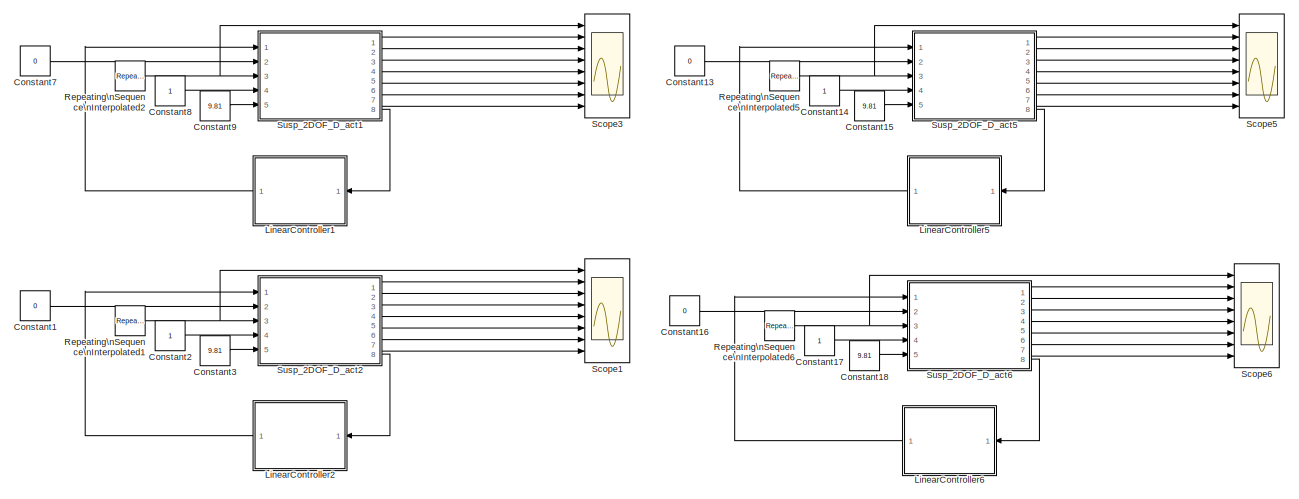
[diagram: root canvas - part 1/2, full width, top band]
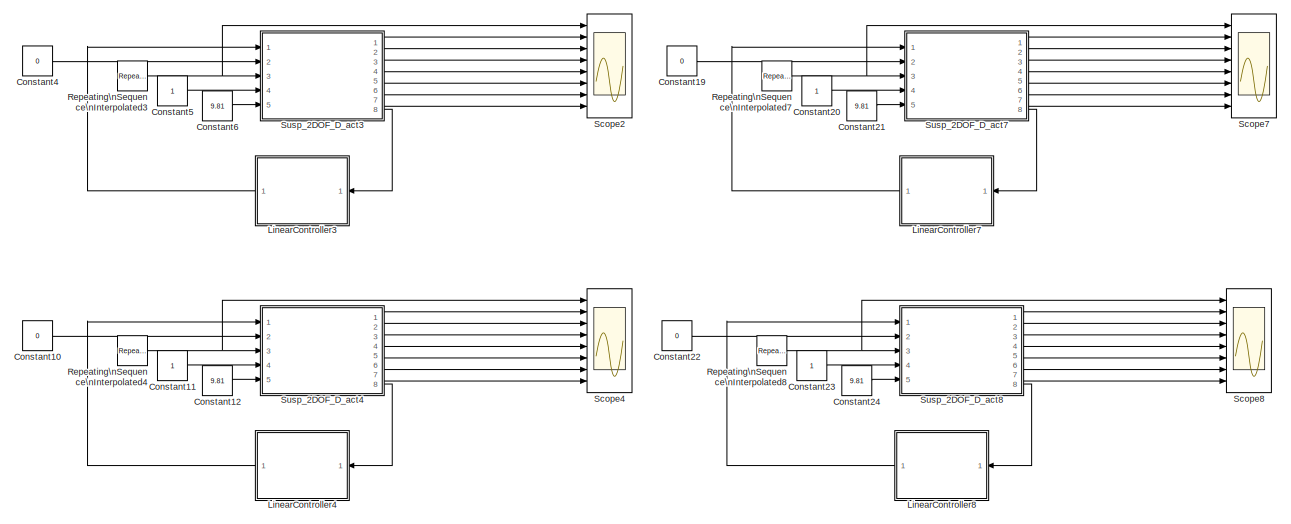
[diagram: root canvas - part 2/2, full width, bottom band]
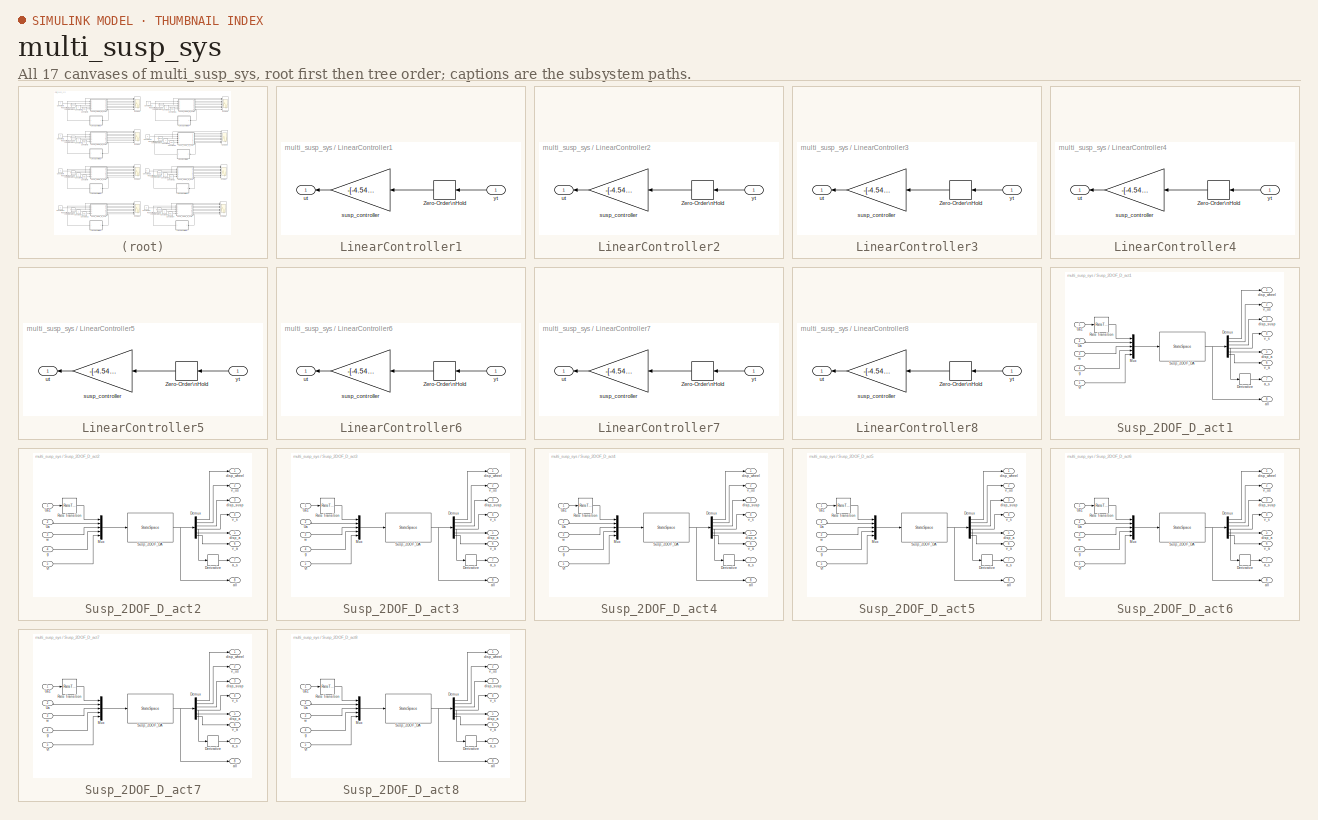
[diagram: thumbnail index - all 17 canvases of the model, root first then tree order]
MODEL multi_susp_sys
KIND model
BLOCK [Constant] Constant1
  SID = 12
  Value = 0
BLOCK [Constant] Constant10
  SID = 34
  Value = 0
BLOCK [Constant] Constant11
  SID = 35
BLOCK [Constant] Constant12
  SID = 36
  Value = 9.81
BLOCK [Constant] Constant13
  SID = 45
  Value = 0
BLOCK [Constant] Constant14
  SID = 46
BLOCK [Constant] Constant15
  SID = 47
  Value = 9.81
BLOCK [Constant] Constant16
  SID = 56
  Value = 0
BLOCK [Constant] Constant17
  SID = 57
BLOCK [Constant] Constant18
  SID = 58
  Value = 9.81
BLOCK [Constant] Constant19
  SID = 67
  Value = 0
BLOCK [Constant] Constant2
  SID = 13
BLOCK [Constant] Constant20
  SID = 68
BLOCK [Constant] Constant21
  SID = 69
  Value = 9.81
BLOCK [Constant] Constant22
  SID = 78
  Value = 0
BLOCK [Constant] Constant23
  SID = 79
BLOCK [Constant] Constant24
  SID = 80
  Value = 9.81
BLOCK [Constant] Constant3
  SID = 14
  Value = 9.81
BLOCK [Constant] Constant4
  SID = 23
  Value = 0
BLOCK [Constant] Constant5
  SID = 24
BLOCK [Constant] Constant6
  SID = 25
  Value = 9.81
BLOCK [Constant] Constant7
  SID = 1
  Value = 0
BLOCK [Constant] Constant8
  SID = 2
BLOCK [Constant] Constant9
  SID = 3
  Value = 9.81
BLOCK [SubSystem] LinearController1
  FunctionWithSeparateData = off
  MaskHideContents = off
  MinAlgLoopOccurrences = off
  Opaque = off
  Ports = [1, 1]
  PropExecContextOutsideSubsystem = off
  RTWSystemCode = Auto
  RequestExecContextInheritance = off
  SID = 4
BLOCK [ZeroOrderHold] LinearController1/Zero-Order\nHold
  SID = 6
  SampleTime = 0.01
BLOCK [Gain] LinearController1/susp_controller
  Gain = -[-4.5469 1.7393 7 9.3078 0 0]
  Multiplication = Matrix(K*u)
  OutDataTypeStr = Inherit: Inherit via internal rule
  ParamDataTypeStr = Inherit: Inherit via internal rule
  SID = 7
  SaturateOnIntegerOverflow = off
BLOCK [Outport] LinearController1/ut
  IconDisplay = Port number
  SID = 8
BLOCK [Inport] LinearController1/yt
  IconDisplay = Port number
  SID = 5
BLOCK [SubSystem] LinearController2
  FunctionWithSeparateData = off
  MaskHideContents = off
  MinAlgLoopOccurrences = off
  Opaque = off
  Ports = [1, 1]
  PropExecContextOutsideSubsystem = off
  RTWSystemCode = Auto
  RequestExecContextInheritance = off
  SID = 15
BLOCK [ZeroOrderHold] LinearController2/Zero-Order\nHold
  SID = 17
  SampleTime = 0.01
BLOCK [Gain] LinearController2/susp_controller
  Gain = -[-4.5469 1.7393 7 9.3078 0 0]
  Multiplication = Matrix(K*u)
  OutDataTypeStr = Inherit: Inherit via internal rule
  ParamDataTypeStr = Inherit: Inherit via internal rule
  SID = 18
  SaturateOnIntegerOverflow = off
BLOCK [Outport] LinearController2/ut
  IconDisplay = Port number
  SID = 19
BLOCK [Inport] LinearController2/yt
  IconDisplay = Port number
  SID = 16
BLOCK [SubSystem] LinearController3
  FunctionWithSeparateData = off
  MaskHideContents = off
  MinAlgLoopOccurrences = off
  Opaque = off
  Ports = [1, 1]
  PropExecContextOutsideSubsystem = off
  RTWSystemCode = Auto
  RequestExecContextInheritance = off
  SID = 26
BLOCK [ZeroOrderHold] LinearController3/Zero-Order\nHold
  SID = 28
  SampleTime = 0.01
BLOCK [Gain] LinearController3/susp_controller
  Gain = -[-4.5469 1.7393 7 9.3078 0 0]
  Multiplication = Matrix(K*u)
  OutDataTypeStr = Inherit: Inherit via internal rule
  ParamDataTypeStr = Inherit: Inherit via internal rule
  SID = 29
  SaturateOnIntegerOverflow = off
BLOCK [Outport] LinearController3/ut
  IconDisplay = Port number
  SID = 30
BLOCK [Inport] LinearController3/yt
  IconDisplay = Port number
  SID = 27
BLOCK [SubSystem] LinearController4
  FunctionWithSeparateData = off
  MaskHideContents = off
  MinAlgLoopOccurrences = off
  Opaque = off
  Ports = [1, 1]
  PropExecContextOutsideSubsystem = off
  RTWSystemCode = Auto
  RequestExecContextInheritance = off
  SID = 37
BLOCK [ZeroOrderHold] LinearController4/Zero-Order\nHold
  SID = 39
  SampleTime = 0.01
BLOCK [Gain] LinearController4/susp_controller
  Gain = -[-4.5469 1.7393 7 9.3078 0 0]
  Multiplication = Matrix(K*u)
  OutDataTypeStr = Inherit: Inherit via internal rule
  ParamDataTypeStr = Inherit: Inherit via internal rule
  SID = 40
  SaturateOnIntegerOverflow = off
BLOCK [Outport] LinearController4/ut
  IconDisplay = Port number
  SID = 41
BLOCK [Inport] LinearController4/yt
  IconDisplay = Port number
  SID = 38
BLOCK [SubSystem] LinearController5
  FunctionWithSeparateData = off
  MaskHideContents = off
  MinAlgLoopOccurrences = off
  Opaque = off
  Ports = [1, 1]
  PropExecContextOutsideSubsystem = off
  RTWSystemCode = Auto
  RequestExecContextInheritance = off
  SID = 48
BLOCK [ZeroOrderHold] LinearController5/Zero-Order\nHold
  SID = 50
  SampleTime = 0.01
BLOCK [Gain] LinearController5/susp_controller
  Gain = -[-4.5469 1.7393 7 9.3078 0 0]
  Multiplication = Matrix(K*u)
  OutDataTypeStr = Inherit: Inherit via internal rule
  ParamDataTypeStr = Inherit: Inherit via internal rule
  SID = 51
  SaturateOnIntegerOverflow = off
BLOCK [Outport] LinearController5/ut
  IconDisplay = Port number
  SID = 52
BLOCK [Inport] LinearController5/yt
  IconDisplay = Port number
  SID = 49
BLOCK [SubSystem] LinearController6
  FunctionWithSeparateData = off
  MaskHideContents = off
  MinAlgLoopOccurrences = off
  Opaque = off
  Ports = [1, 1]
  PropExecContextOutsideSubsystem = off
  RTWSystemCode = Auto
  RequestExecContextInheritance = off
  SID = 59
BLOCK [ZeroOrderHold] LinearController6/Zero-Order\nHold
  SID = 61
  SampleTime = 0.01
BLOCK [Gain] LinearController6/susp_controller
  Gain = -[-4.5469 1.7393 7 9.3078 0 0]
  Multiplication = Matrix(K*u)
  OutDataTypeStr = Inherit: Inherit via internal rule
  ParamDataTypeStr = Inherit: Inherit via internal rule
  SID = 62
  SaturateOnIntegerOverflow = off
BLOCK [Outport] LinearController6/ut
  IconDisplay = Port number
  SID = 63
BLOCK [Inport] LinearController6/yt
  IconDisplay = Port number
  SID = 60
BLOCK [SubSystem] LinearController7
  FunctionWithSeparateData = off
  MaskHideContents = off
  MinAlgLoopOccurrences = off
  Opaque = off
  Ports = [1, 1]
  PropExecContextOutsideSubsystem = off
  RTWSystemCode = Auto
  RequestExecContextInheritance = off
  SID = 70
BLOCK [ZeroOrderHold] LinearController7/Zero-Order\nHold
  SID = 72
  SampleTime = 0.01
BLOCK [Gain] LinearController7/susp_controller
  Gain = -[-4.5469 1.7393 7 9.3078 0 0]
  Multiplication = Matrix(K*u)
  OutDataTypeStr = Inherit: Inherit via internal rule
  ParamDataTypeStr = Inherit: Inherit via internal rule
  SID = 73
  SaturateOnIntegerOverflow = off
BLOCK [Outport] LinearController7/ut
  IconDisplay = Port number
  SID = 74
BLOCK [Inport] LinearController7/yt
  IconDisplay = Port number
  SID = 71
BLOCK [SubSystem] LinearController8
  FunctionWithSeparateData = off
  MaskHideContents = off
  MinAlgLoopOccurrences = off
  Opaque = off
  Ports = [1, 1]
  PropExecContextOutsideSubsystem = off
  RTWSystemCode = Auto
  RequestExecContextInheritance = off
  SID = 81
BLOCK [ZeroOrderHold] LinearController8/Zero-Order\nHold
  SID = 83
  SampleTime = 0.01
BLOCK [Gain] LinearController8/susp_controller
  Gain = -[-4.5469 1.7393 7 9.3078 0 0]
  Multiplication = Matrix(K*u)
  OutDataTypeStr = Inherit: Inherit via internal rule
  ParamDataTypeStr = Inherit: Inherit via internal rule
  SID = 84
  SaturateOnIntegerOverflow = off
BLOCK [Outport] LinearController8/ut
  IconDisplay = Port number
  SID = 85
BLOCK [Inport] LinearController8/yt
  IconDisplay = Port number
  SID = 82
BLOCK [Reference] Repeating\nSequence\nInterpolated1  REF=simulink/Sources/Repeating\nSequence\nInterpolated
  FunctionWithSeparateData = off
  GeneratePreprocessorConditionals = off
  LockScale = off
  LookUpMeth = Interpolation-Use End Values
  OutDataType = fixdt(0,8)
  OutDataTypeStr = double
  OutMax = []
  OutMin = []
  OutScaling = 2^-10
  OutValues = [0 0.5 0 -0.5 0 -0.5 0 0.5 0].'
  OutputDataTypeScalingMode = double
  Ports = [0, 1]
  RTWMemSecDataConstants = Inherit from model
  RTWMemSecDataInternal = Inherit from model
  RTWMemSecDataParameters = Inherit from model
  RTWMemSecFuncExecute = Inherit from model
  RTWMemSecFuncInitTerm = Inherit from model
  SID = 20
  ShowPortLabels = FromPortIcon
  SourceBlock = simulink/Sources/Repeating\nSequence\nInterpolated
  SourceType = Repeating Sequence Interpolated
  SystemSampleTime = -1
  TimeValues = [0 0.1 0.2 0.3 0.4 0.6 0.7 0.8 0.9].'
  tsamp = 0.01
BLOCK [Reference] Repeating\nSequence\nInterpolated2  REF=simulink/Sources/Repeating\nSequence\nInterpolated
  FunctionWithSeparateData = off
  GeneratePreprocessorConditionals = off
  LockScale = off
  LookUpMeth = Interpolation-Use End Values
  OutDataType = fixdt(0,8)
  OutDataTypeStr = double
  OutMax = []
  OutMin = []
  OutScaling = 2^-10
  OutValues = [0 0.5 0 -0.5 0 -0.5 0 0.5 0].'
  OutputDataTypeScalingMode = double
  Ports = [0, 1]
  RTWMemSecDataConstants = Inherit from model
  RTWMemSecDataInternal = Inherit from model
  RTWMemSecDataParameters = Inherit from model
  RTWMemSecFuncExecute = Inherit from model
  RTWMemSecFuncInitTerm = Inherit from model
  SID = 9
  ShowPortLabels = FromPortIcon
  SourceBlock = simulink/Sources/Repeating\nSequence\nInterpolated
  SourceType = Repeating Sequence Interpolated
  SystemSampleTime = -1
  TimeValues = [0 0.1 0.2 0.3 0.4 0.6 0.7 0.8 0.9].'
  tsamp = 0.01
BLOCK [Reference] Repeating\nSequence\nInterpolated3  REF=simulink/Sources/Repeating\nSequence\nInterpolated
  FunctionWithSeparateData = off
  GeneratePreprocessorConditionals = off
  LockScale = off
  LookUpMeth = Interpolation-Use End Values
  OutDataType = fixdt(0,8)
  OutDataTypeStr = double
  OutMax = []
  OutMin = []
  OutScaling = 2^-10
  OutValues = [0 0.5 0 -0.5 0 -0.5 0 0.5 0].'
  OutputDataTypeScalingMode = double
  Ports = [0, 1]
  RTWMemSecDataConstants = Inherit from model
  RTWMemSecDataInternal = Inherit from model
  RTWMemSecDataParameters = Inherit from model
  RTWMemSecFuncExecute = Inherit from model
  RTWMemSecFuncInitTerm = Inherit from model
  SID = 31
  ShowPortLabels = FromPortIcon
  SourceBlock = simulink/Sources/Repeating\nSequence\nInterpolated
  SourceType = Repeating Sequence Interpolated
  SystemSampleTime = -1
  TimeValues = [0 0.1 0.2 0.3 0.4 0.6 0.7 0.8 0.9].'
  tsamp = 0.01
BLOCK [Reference] Repeating\nSequence\nInterpolated4  REF=simulink/Sources/Repeating\nSequence\nInterpolated
  FunctionWithSeparateData = off
  GeneratePreprocessorConditionals = off
  LockScale = off
  LookUpMeth = Interpolation-Use End Values
  OutDataType = fixdt(0,8)
  OutDataTypeStr = double
  OutMax = []
  OutMin = []
  OutScaling = 2^-10
  OutValues = [0 0.5 0 -0.5 0 -0.5 0 0.5 0].'
  OutputDataTypeScalingMode = double
  Ports = [0, 1]
  RTWMemSecDataConstants = Inherit from model
  RTWMemSecDataInternal = Inherit from model
  RTWMemSecDataParameters = Inherit from model
  RTWMemSecFuncExecute = Inherit from model
  RTWMemSecFuncInitTerm = Inherit from model
  SID = 42
  ShowPortLabels = FromPortIcon
  SourceBlock = simulink/Sources/Repeating\nSequence\nInterpolated
  SourceType = Repeating Sequence Interpolated
  SystemSampleTime = -1
  TimeValues = [0 0.1 0.2 0.3 0.4 0.6 0.7 0.8 0.9].'
  tsamp = 0.01
BLOCK [Reference] Repeating\nSequence\nInterpolated5  REF=simulink/Sources/Repeating\nSequence\nInterpolated
  FunctionWithSeparateData = off
  GeneratePreprocessorConditionals = off
  LockScale = off
  LookUpMeth = Interpolation-Use End Values
  OutDataType = fixdt(0,8)
  OutDataTypeStr = double
  OutMax = []
  OutMin = []
  OutScaling = 2^-10
  OutValues = [0 0.5 0 -0.5 0 -0.5 0 0.5 0].'
  OutputDataTypeScalingMode = double
  Ports = [0, 1]
  RTWMemSecDataConstants = Inherit from model
  RTWMemSecDataInternal = Inherit from model
  RTWMemSecDataParameters = Inherit from model
  RTWMemSecFuncExecute = Inherit from model
  RTWMemSecFuncInitTerm = Inherit from model
  SID = 53
  ShowPortLabels = FromPortIcon
  SourceBlock = simulink/Sources/Repeating\nSequence\nInterpolated
  SourceType = Repeating Sequence Interpolated
  SystemSampleTime = -1
  TimeValues = [0 0.1 0.2 0.3 0.4 0.6 0.7 0.8 0.9].'
  tsamp = 0.01
BLOCK [Reference] Repeating\nSequence\nInterpolated6  REF=simulink/Sources/Repeating\nSequence\nInterpolated
  FunctionWithSeparateData = off
  GeneratePreprocessorConditionals = off
  LockScale = off
  LookUpMeth = Interpolation-Use End Values
  OutDataType = fixdt(0,8)
  OutDataTypeStr = double
  OutMax = []
  OutMin = []
  OutScaling = 2^-10
  OutValues = [0 0.5 0 -0.5 0 -0.5 0 0.5 0].'
  OutputDataTypeScalingMode = double
  Ports = [0, 1]
  RTWMemSecDataConstants = Inherit from model
  RTWMemSecDataInternal = Inherit from model
  RTWMemSecDataParameters = Inherit from model
  RTWMemSecFuncExecute = Inherit from model
  RTWMemSecFuncInitTerm = Inherit from model
  SID = 64
  ShowPortLabels = FromPortIcon
  SourceBlock = simulink/Sources/Repeating\nSequence\nInterpolated
  SourceType = Repeating Sequence Interpolated
  SystemSampleTime = -1
  TimeValues = [0 0.1 0.2 0.3 0.4 0.6 0.7 0.8 0.9].'
  tsamp = 0.01
BLOCK [Reference] Repeating\nSequence\nInterpolated7  REF=simulink/Sources/Repeating\nSequence\nInterpolated
  FunctionWithSeparateData = off
  GeneratePreprocessorConditionals = off
  LockScale = off
  LookUpMeth = Interpolation-Use End Values
  OutDataType = fixdt(0,8)
  OutDataTypeStr = double
  OutMax = []
  OutMin = []
  OutScaling = 2^-10
  OutValues = [0 0.5 0 -0.5 0 -0.5 0 0.5 0].'
  OutputDataTypeScalingMode = double
  Ports = [0, 1]
  RTWMemSecDataConstants = Inherit from model
  RTWMemSecDataInternal = Inherit from model
  RTWMemSecDataParameters = Inherit from model
  RTWMemSecFuncExecute = Inherit from model
  RTWMemSecFuncInitTerm = Inherit from model
  SID = 75
  ShowPortLabels = FromPortIcon
  SourceBlock = simulink/Sources/Repeating\nSequence\nInterpolated
  SourceType = Repeating Sequence Interpolated
  SystemSampleTime = -1
  TimeValues = [0 0.1 0.2 0.3 0.4 0.6 0.7 0.8 0.9].'
  tsamp = 0.01
BLOCK [Reference] Repeating\nSequence\nInterpolated8  REF=simulink/Sources/Repeating\nSequence\nInterpolated
  FunctionWithSeparateData = off
  GeneratePreprocessorConditionals = off
  LockScale = off
  LookUpMeth = Interpolation-Use End Values
  OutDataType = fixdt(0,8)
  OutDataTypeStr = double
  OutMax = []
  OutMin = []
  OutScaling = 2^-10
  OutValues = [0 0.5 0 -0.5 0 -0.5 0 0.5 0].'
  OutputDataTypeScalingMode = double
  Ports = [0, 1]
  RTWMemSecDataConstants = Inherit from model
  RTWMemSecDataInternal = Inherit from model
  RTWMemSecDataParameters = Inherit from model
  RTWMemSecFuncExecute = Inherit from model
  RTWMemSecFuncInitTerm = Inherit from model
  SID = 86
  ShowPortLabels = FromPortIcon
  SourceBlock = simulink/Sources/Repeating\nSequence\nInterpolated
  SourceType = Repeating Sequence Interpolated
  SystemSampleTime = -1
  TimeValues = [0 0.1 0.2 0.3 0.4 0.6 0.7 0.8 0.9].'
  tsamp = 0.01
BLOCK [Scope] Scope1
  DataFormat = StructureWithTime
  Floating = off
  LimitDataPoints = off
  NumInputPorts = 8
  Ports = [8]
  SID = 21
  SampleTime = 0
  SaveName = ScopeData1
  SaveToWorkspace = on
  YMax = 0.5~0.5~30~0.3~5~5~5~5
  YMin = -0.5~-0.5~-30~-0.9~-5~-5~-5~-5
  ZoomMode = yonly
BLOCK [Scope] Scope2
  DataFormat = StructureWithTime
  Floating = off
  LimitDataPoints = off
  NumInputPorts = 8
  Ports = [8]
  SID = 32
  SampleTime = 0
  SaveName = ScopeData2
  SaveToWorkspace = on
  YMax = 0.5~0.5~30~0.3~5~5~5~5
  YMin = -0.5~-0.5~-30~-0.9~-5~-5~-5~-5
  ZoomMode = yonly
BLOCK [Scope] Scope3
  DataFormat = StructureWithTime
  Floating = off
  LimitDataPoints = off
  NumInputPorts = 8
  Ports = [8]
  SID = 10
  SampleTime = 0
  SaveToWorkspace = on
  YMax = 0.5~0.5~30~0.3~5~5~5~5
  YMin = -0.5~-0.5~-30~-0.9~-5~-5~-5~-5
  ZoomMode = yonly
BLOCK [Scope] Scope4
  DataFormat = StructureWithTime
  Floating = off
  LimitDataPoints = off
  NumInputPorts = 8
  Ports = [8]
  SID = 43
  SampleTime = 0
  SaveName = ScopeData3
  SaveToWorkspace = on
  YMax = 0.5~0.5~30~0.3~5~5~5~5
  YMin = -0.5~-0.5~-30~-0.9~-5~-5~-5~-5
  ZoomMode = yonly
BLOCK [Scope] Scope5
  DataFormat = StructureWithTime
  Floating = off
  LimitDataPoints = off
  NumInputPorts = 8
  Ports = [8]
  SID = 54
  SampleTime = 0
  SaveName = ScopeData4
  SaveToWorkspace = on
  YMax = 0.5~0.5~30~0.3~5~5~5~5
  YMin = -0.5~-0.5~-30~-0.9~-5~-5~-5~-5
  ZoomMode = yonly
BLOCK [Scope] Scope6
  DataFormat = StructureWithTime
  Floating = off
  LimitDataPoints = off
  NumInputPorts = 8
  Ports = [8]
  SID = 65
  SampleTime = 0
  SaveName = ScopeData5
  SaveToWorkspace = on
  YMax = 0.5~0.5~30~0.3~5~5~5~5
  YMin = -0.5~-0.5~-30~-0.9~-5~-5~-5~-5
  ZoomMode = yonly
BLOCK [Scope] Scope7
  DataFormat = StructureWithTime
  Floating = off
  LimitDataPoints = off
  NumInputPorts = 8
  Ports = [8]
  SID = 76
  SampleTime = 0
  SaveName = ScopeData6
  SaveToWorkspace = on
  YMax = 0.5~0.5~30~0.3~5~5~5~5
  YMin = -0.5~-0.5~-30~-0.9~-5~-5~-5~-5
  ZoomMode = yonly
BLOCK [Scope] Scope8
  DataFormat = StructureWithTime
  Floating = off
  LimitDataPoints = off
  NumInputPorts = 8
  Ports = [8]
  SID = 87
  SampleTime = 0
  SaveName = ScopeData7
  SaveToWorkspace = on
  YMax = 0.5~0.5~30~0.3~5~5~5~5
  YMin = -0.5~-0.5~-30~-0.9~-5~-5~-5~-5
  ZoomMode = yonly
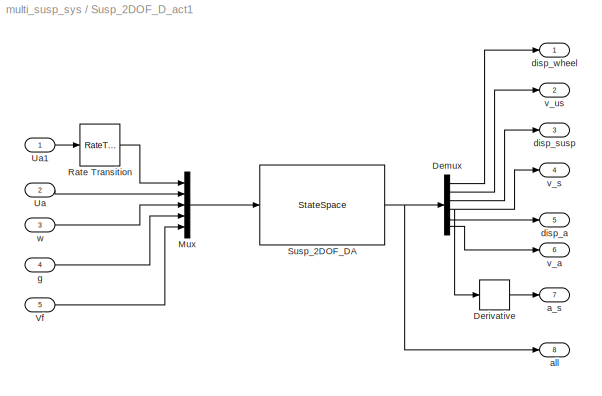
BLOCK [SubSystem] Susp_2DOF_D_act1
  AncestorBlock = suspension_lib/Suspension:G(s)
  FunctionWithSeparateData = off
  MaskCallbackString = ||||||||
  MaskEnableString = on,on,on,on,on,on,on,on,on
  MaskHideContents = off
  MaskIconFrame = on
  MaskIconOpaque = on
  MaskIconRotate = none
  MaskIconUnits = autoscale
  MaskInitialization = w = sqrt( k_us / m_us );\nw_us = sqrt( k_us / m_us );\nrho = m_s / m_us;\nrho_a = 0;\ng = 9.81; % m/s^2 gravitational acceleration\n\n% m_s == 0 and m_us == 0 are not allowed\n% Work around possible divide by zero when m_a == 0\n%  build A by rows\nA = [0 1 0 0 0 0]; \nA = [A; -(k_us/m_us) (-b_s/m_us)+(b_us/m_us) (k_s/m_us) (b_s/m_us) 0 0]; \nA = [A; 0 -1 0 1 0 0]; \nA = [A; 0 (b_s/m_s) -(k_s/m_s)...<+984ch>  <repeated x8 — deduplicated; at blocks: Susp_2DOF_D_act1, Susp_2DOF_D_act2, Susp_2DOF_D_act3, Susp_2DOF_D_act4, Susp_2DOF_D_act5, Susp_2DOF_D_act6, Susp_2DOF_D_act7, Susp_2DOF_D_act8>
  MaskPortRotate = default
  MaskPromptString = Sprung mass (kg)|Sprung mass spring constant (N/m)|Sprung mass damping coefficient (N s/m)|Unsprung mass (kg)|Unsprung mass spring constant (N/m)|Unsprung mass damping coefficient (N s/m)|Damper mass (kg)|Damper spring constant (N/m)|Damper damping coeff (N s/m)  <repeated x8 — deduplicated; at blocks: Susp_2DOF_D_act1, Susp_2DOF_D_act2, Susp_2DOF_D_act3, Susp_2DOF_D_act4, Susp_2DOF_D_act5, Susp_2DOF_D_act6, Susp_2DOF_D_act7, Susp_2DOF_D_act8>
  MaskStyleString = edit,edit,edit,edit,edit,edit,edit,edit,edit
  MaskToolTipString = on,on,on,on,on,on,on,on,on
  MaskTunableValueString = on,on,on,on,on,on,on,on,on
  MaskValueString = 25000|60000|3500|413|65096.03|15000|0|0|0
  MaskVariables = m_s=@1;k_s=@2;b_s=@3;m_us=@4;k_us=@5;b_us=@6;m_a=@7;k_a=@8;b_a=@9;
  MaskVisibilityString = on,on,on,on,on,on,on,on,on
  MinAlgLoopOccurrences = off
  Opaque = off
  Ports = [5, 8]
  PropExecContextOutsideSubsystem = off
  RTWSystemCode = Auto
  RequestExecContextInheritance = off
  SID = 11
BLOCK [Demux] Susp_2DOF_D_act1/Demux
  DisplayOption = bar
  Outputs = 6
  Ports = [1, 6]
  SID = 11:47
BLOCK [Derivative] Susp_2DOF_D_act1/Derivative
  SID = 11:55
BLOCK [Mux] Susp_2DOF_D_act1/Mux
  DisplayOption = bar
  Inputs = 5
  Ports = [5, 1]
  SID = 11:46
BLOCK [RateTransition] Susp_2DOF_D_act1/Rate Transition
  SID = 11:63
BLOCK [StateSpace] Susp_2DOF_D_act1/Susp_2DOF_DA
  A = A
  B = B
  C = eye(6)
  D = zeros(6,5)
  SID = 11:43
BLOCK [Inport] Susp_2DOF_D_act1/Ua
  IconDisplay = Port number
  Port = 2
  SID = 11:44
BLOCK [Inport] Susp_2DOF_D_act1/Ua1
  IconDisplay = Port number
  SID = 11:60
BLOCK [Inport] Susp_2DOF_D_act1/Vf
  IconDisplay = Port number
  Port = 5
  SID = 11:54
BLOCK [Outport] Susp_2DOF_D_act1/a_s
  IconDisplay = Port number
  Port = 7
  SID = 11:56
BLOCK [Outport] Susp_2DOF_D_act1/all
  IconDisplay = Port number
  Port = 8
  SID = 11:61
BLOCK [Outport] Susp_2DOF_D_act1/disp_a
  IconDisplay = Port number
  Port = 5
  SID = 11:51
BLOCK [Outport] Susp_2DOF_D_act1/disp_susp
  IconDisplay = Port number
  Port = 3
  SID = 11:49
BLOCK [Outport] Susp_2DOF_D_act1/disp_wheel
  IconDisplay = Port number
  SID = 11:42
BLOCK [Inport] Susp_2DOF_D_act1/g
  IconDisplay = Port number
  Port = 4
  SID = 11:53
BLOCK [Outport] Susp_2DOF_D_act1/v_a
  IconDisplay = Port number
  Port = 6
  SID = 11:52
BLOCK [Outport] Susp_2DOF_D_act1/v_s
  IconDisplay = Port number
  Port = 4
  SID = 11:50
BLOCK [Outport] Susp_2DOF_D_act1/v_us
  IconDisplay = Port number
  Port = 2
  SID = 11:48
BLOCK [Inport] Susp_2DOF_D_act1/w
  IconDisplay = Port number
  Port = 3
  SID = 11:45
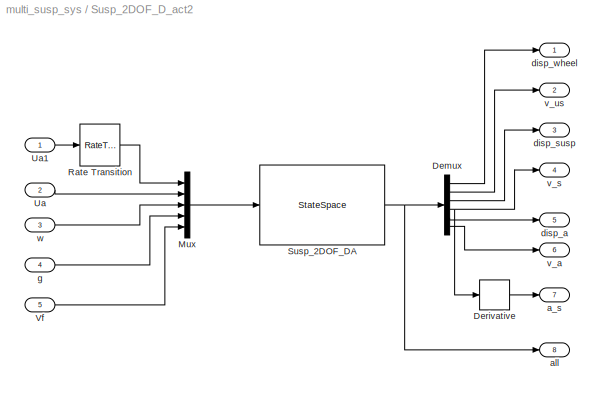
BLOCK [SubSystem] Susp_2DOF_D_act2
  AncestorBlock = suspension_lib/Suspension:G(s)
  FunctionWithSeparateData = off
  MaskCallbackString = ||||||||
  MaskEnableString = on,on,on,on,on,on,on,on,on
  MaskHideContents = off
  MaskIconFrame = on
  MaskIconOpaque = on
  MaskIconRotate = none
  MaskIconUnits = autoscale
  MaskPortRotate = default
  MaskStyleString = edit,edit,edit,edit,edit,edit,edit,edit,edit
  MaskToolTipString = on,on,on,on,on,on,on,on,on
  MaskTunableValueString = on,on,on,on,on,on,on,on,on
  MaskValueString = 25000|60000|3500|413|65096.03|15000|0|0|0
  MaskVariables = m_s=@1;k_s=@2;b_s=@3;m_us=@4;k_us=@5;b_us=@6;m_a=@7;k_a=@8;b_a=@9;
  MaskVisibilityString = on,on,on,on,on,on,on,on,on
  MinAlgLoopOccurrences = off
  Opaque = off
  Ports = [5, 8]
  PropExecContextOutsideSubsystem = off
  RTWSystemCode = Auto
  RequestExecContextInheritance = off
  SID = 22
BLOCK [Demux] Susp_2DOF_D_act2/Demux
  DisplayOption = bar
  Outputs = 6
  Ports = [1, 6]
  SID = 22:47
BLOCK [Derivative] Susp_2DOF_D_act2/Derivative
  SID = 22:55
BLOCK [Mux] Susp_2DOF_D_act2/Mux
  DisplayOption = bar
  Inputs = 5
  Ports = [5, 1]
  SID = 22:46
BLOCK [RateTransition] Susp_2DOF_D_act2/Rate Transition
  SID = 22:63
BLOCK [StateSpace] Susp_2DOF_D_act2/Susp_2DOF_DA
  A = A
  B = B
  C = eye(6)
  D = zeros(6,5)
  SID = 22:43
BLOCK [Inport] Susp_2DOF_D_act2/Ua
  IconDisplay = Port number
  Port = 2
  SID = 22:44
BLOCK [Inport] Susp_2DOF_D_act2/Ua1
  IconDisplay = Port number
  SID = 22:60
BLOCK [Inport] Susp_2DOF_D_act2/Vf
  IconDisplay = Port number
  Port = 5
  SID = 22:54
BLOCK [Outport] Susp_2DOF_D_act2/a_s
  IconDisplay = Port number
  Port = 7
  SID = 22:56
BLOCK [Outport] Susp_2DOF_D_act2/all
  IconDisplay = Port number
  Port = 8
  SID = 22:61
BLOCK [Outport] Susp_2DOF_D_act2/disp_a
  IconDisplay = Port number
  Port = 5
  SID = 22:51
BLOCK [Outport] Susp_2DOF_D_act2/disp_susp
  IconDisplay = Port number
  Port = 3
  SID = 22:49
BLOCK [Outport] Susp_2DOF_D_act2/disp_wheel
  IconDisplay = Port number
  SID = 22:42
BLOCK [Inport] Susp_2DOF_D_act2/g
  IconDisplay = Port number
  Port = 4
  SID = 22:53
BLOCK [Outport] Susp_2DOF_D_act2/v_a
  IconDisplay = Port number
  Port = 6
  SID = 22:52
BLOCK [Outport] Susp_2DOF_D_act2/v_s
  IconDisplay = Port number
  Port = 4
  SID = 22:50
BLOCK [Outport] Susp_2DOF_D_act2/v_us
  IconDisplay = Port number
  Port = 2
  SID = 22:48
BLOCK [Inport] Susp_2DOF_D_act2/w
  IconDisplay = Port number
  Port = 3
  SID = 22:45
BLOCK [SubSystem] Susp_2DOF_D_act3
  AncestorBlock = suspension_lib/Suspension:G(s)
  FunctionWithSeparateData = off
  MaskCallbackString = ||||||||
  MaskEnableString = on,on,on,on,on,on,on,on,on
  MaskHideContents = off
  MaskIconFrame = on
  MaskIconOpaque = on
  MaskIconRotate = none
  MaskIconUnits = autoscale
  MaskPortRotate = default
  MaskStyleString = edit,edit,edit,edit,edit,edit,edit,edit,edit
  MaskToolTipString = on,on,on,on,on,on,on,on,on
  MaskTunableValueString = on,on,on,on,on,on,on,on,on
  MaskValueString = 25000|60000|3500|413|65096.03|15000|0|0|0
  MaskVariables = m_s=@1;k_s=@2;b_s=@3;m_us=@4;k_us=@5;b_us=@6;m_a=@7;k_a=@8;b_a=@9;
  MaskVisibilityString = on,on,on,on,on,on,on,on,on
  MinAlgLoopOccurrences = off
  Opaque = off
  Ports = [5, 8]
  PropExecContextOutsideSubsystem = off
  RTWSystemCode = Auto
  RequestExecContextInheritance = off
  SID = 33
BLOCK [Demux] Susp_2DOF_D_act3/Demux
  DisplayOption = bar
  Outputs = 6
  Ports = [1, 6]
  SID = 33:47
BLOCK [Derivative] Susp_2DOF_D_act3/Derivative
  SID = 33:55
BLOCK [Mux] Susp_2DOF_D_act3/Mux
  DisplayOption = bar
  Inputs = 5
  Ports = [5, 1]
  SID = 33:46
BLOCK [RateTransition] Susp_2DOF_D_act3/Rate Transition
  SID = 33:63
BLOCK [StateSpace] Susp_2DOF_D_act3/Susp_2DOF_DA
  A = A
  B = B
  C = eye(6)
  D = zeros(6,5)
  SID = 33:43
BLOCK [Inport] Susp_2DOF_D_act3/Ua
  IconDisplay = Port number
  Port = 2
  SID = 33:44
BLOCK [Inport] Susp_2DOF_D_act3/Ua1
  IconDisplay = Port number
  SID = 33:60
BLOCK [Inport] Susp_2DOF_D_act3/Vf
  IconDisplay = Port number
  Port = 5
  SID = 33:54
BLOCK [Outport] Susp_2DOF_D_act3/a_s
  IconDisplay = Port number
  Port = 7
  SID = 33:56
BLOCK [Outport] Susp_2DOF_D_act3/all
  IconDisplay = Port number
  Port = 8
  SID = 33:61
BLOCK [Outport] Susp_2DOF_D_act3/disp_a
  IconDisplay = Port number
  Port = 5
  SID = 33:51
BLOCK [Outport] Susp_2DOF_D_act3/disp_susp
  IconDisplay = Port number
  Port = 3
  SID = 33:49
BLOCK [Outport] Susp_2DOF_D_act3/disp_wheel
  IconDisplay = Port number
  SID = 33:42
BLOCK [Inport] Susp_2DOF_D_act3/g
  IconDisplay = Port number
  Port = 4
  SID = 33:53
BLOCK [Outport] Susp_2DOF_D_act3/v_a
  IconDisplay = Port number
  Port = 6
  SID = 33:52
BLOCK [Outport] Susp_2DOF_D_act3/v_s
  IconDisplay = Port number
  Port = 4
  SID = 33:50
BLOCK [Outport] Susp_2DOF_D_act3/v_us
  IconDisplay = Port number
  Port = 2
  SID = 33:48
BLOCK [Inport] Susp_2DOF_D_act3/w
  IconDisplay = Port number
  Port = 3
  SID = 33:45
BLOCK [SubSystem] Susp_2DOF_D_act4
  AncestorBlock = suspension_lib/Suspension:G(s)
  FunctionWithSeparateData = off
  MaskCallbackString = ||||||||
  MaskEnableString = on,on,on,on,on,on,on,on,on
  MaskHideContents = off
  MaskIconFrame = on
  MaskIconOpaque = on
  MaskIconRotate = none
  MaskIconUnits = autoscale
  MaskPortRotate = default
  MaskStyleString = edit,edit,edit,edit,edit,edit,edit,edit,edit
  MaskToolTipString = on,on,on,on,on,on,on,on,on
  MaskTunableValueString = on,on,on,on,on,on,on,on,on
  MaskValueString = 25000|60000|3500|413|65096.03|15000|0|0|0
  MaskVariables = m_s=@1;k_s=@2;b_s=@3;m_us=@4;k_us=@5;b_us=@6;m_a=@7;k_a=@8;b_a=@9;
  MaskVisibilityString = on,on,on,on,on,on,on,on,on
  MinAlgLoopOccurrences = off
  Opaque = off
  Ports = [5, 8]
  PropExecContextOutsideSubsystem = off
  RTWSystemCode = Auto
  RequestExecContextInheritance = off
  SID = 44
BLOCK [Demux] Susp_2DOF_D_act4/Demux
  DisplayOption = bar
  Outputs = 6
  Ports = [1, 6]
  SID = 44:47
BLOCK [Derivative] Susp_2DOF_D_act4/Derivative
  SID = 44:55
BLOCK [Mux] Susp_2DOF_D_act4/Mux
  DisplayOption = bar
  Inputs = 5
  Ports = [5, 1]
  SID = 44:46
BLOCK [RateTransition] Susp_2DOF_D_act4/Rate Transition
  SID = 44:63
BLOCK [StateSpace] Susp_2DOF_D_act4/Susp_2DOF_DA
  A = A
  B = B
  C = eye(6)
  D = zeros(6,5)
  SID = 44:43
BLOCK [Inport] Susp_2DOF_D_act4/Ua
  IconDisplay = Port number
  Port = 2
  SID = 44:44
BLOCK [Inport] Susp_2DOF_D_act4/Ua1
  IconDisplay = Port number
  SID = 44:60
BLOCK [Inport] Susp_2DOF_D_act4/Vf
  IconDisplay = Port number
  Port = 5
  SID = 44:54
BLOCK [Outport] Susp_2DOF_D_act4/a_s
  IconDisplay = Port number
  Port = 7
  SID = 44:56
BLOCK [Outport] Susp_2DOF_D_act4/all
  IconDisplay = Port number
  Port = 8
  SID = 44:61
BLOCK [Outport] Susp_2DOF_D_act4/disp_a
  IconDisplay = Port number
  Port = 5
  SID = 44:51
BLOCK [Outport] Susp_2DOF_D_act4/disp_susp
  IconDisplay = Port number
  Port = 3
  SID = 44:49
BLOCK [Outport] Susp_2DOF_D_act4/disp_wheel
  IconDisplay = Port number
  SID = 44:42
BLOCK [Inport] Susp_2DOF_D_act4/g
  IconDisplay = Port number
  Port = 4
  SID = 44:53
BLOCK [Outport] Susp_2DOF_D_act4/v_a
  IconDisplay = Port number
  Port = 6
  SID = 44:52
BLOCK [Outport] Susp_2DOF_D_act4/v_s
  IconDisplay = Port number
  Port = 4
  SID = 44:50
BLOCK [Outport] Susp_2DOF_D_act4/v_us
  IconDisplay = Port number
  Port = 2
  SID = 44:48
BLOCK [Inport] Susp_2DOF_D_act4/w
  IconDisplay = Port number
  Port = 3
  SID = 44:45
BLOCK [SubSystem] Susp_2DOF_D_act5
  AncestorBlock = suspension_lib/Suspension:G(s)
  FunctionWithSeparateData = off
  MaskCallbackString = ||||||||
  MaskEnableString = on,on,on,on,on,on,on,on,on
  MaskHideContents = off
  MaskIconFrame = on
  MaskIconOpaque = on
  MaskIconRotate = none
  MaskIconUnits = autoscale
  MaskPortRotate = default
  MaskStyleString = edit,edit,edit,edit,edit,edit,edit,edit,edit
  MaskToolTipString = on,on,on,on,on,on,on,on,on
  MaskTunableValueString = on,on,on,on,on,on,on,on,on
  MaskValueString = 25000|60000|3500|413|65096.03|15000|0|0|0
  MaskVariables = m_s=@1;k_s=@2;b_s=@3;m_us=@4;k_us=@5;b_us=@6;m_a=@7;k_a=@8;b_a=@9;
  MaskVisibilityString = on,on,on,on,on,on,on,on,on
  MinAlgLoopOccurrences = off
  Opaque = off
  Ports = [5, 8]
  PropExecContextOutsideSubsystem = off
  RTWSystemCode = Auto
  RequestExecContextInheritance = off
  SID = 55
BLOCK [Demux] Susp_2DOF_D_act5/Demux
  DisplayOption = bar
  Outputs = 6
  Ports = [1, 6]
  SID = 55:47
BLOCK [Derivative] Susp_2DOF_D_act5/Derivative
  SID = 55:55
BLOCK [Mux] Susp_2DOF_D_act5/Mux
  DisplayOption = bar
  Inputs = 5
  Ports = [5, 1]
  SID = 55:46
BLOCK [RateTransition] Susp_2DOF_D_act5/Rate Transition
  SID = 55:63
BLOCK [StateSpace] Susp_2DOF_D_act5/Susp_2DOF_DA
  A = A
  B = B
  C = eye(6)
  D = zeros(6,5)
  SID = 55:43
BLOCK [Inport] Susp_2DOF_D_act5/Ua
  IconDisplay = Port number
  Port = 2
  SID = 55:44
BLOCK [Inport] Susp_2DOF_D_act5/Ua1
  IconDisplay = Port number
  SID = 55:60
BLOCK [Inport] Susp_2DOF_D_act5/Vf
  IconDisplay = Port number
  Port = 5
  SID = 55:54
BLOCK [Outport] Susp_2DOF_D_act5/a_s
  IconDisplay = Port number
  Port = 7
  SID = 55:56
BLOCK [Outport] Susp_2DOF_D_act5/all
  IconDisplay = Port number
  Port = 8
  SID = 55:61
BLOCK [Outport] Susp_2DOF_D_act5/disp_a
  IconDisplay = Port number
  Port = 5
  SID = 55:51
BLOCK [Outport] Susp_2DOF_D_act5/disp_susp
  IconDisplay = Port number
  Port = 3
  SID = 55:49
BLOCK [Outport] Susp_2DOF_D_act5/disp_wheel
  IconDisplay = Port number
  SID = 55:42
BLOCK [Inport] Susp_2DOF_D_act5/g
  IconDisplay = Port number
  Port = 4
  SID = 55:53
BLOCK [Outport] Susp_2DOF_D_act5/v_a
  IconDisplay = Port number
  Port = 6
  SID = 55:52
BLOCK [Outport] Susp_2DOF_D_act5/v_s
  IconDisplay = Port number
  Port = 4
  SID = 55:50
BLOCK [Outport] Susp_2DOF_D_act5/v_us
  IconDisplay = Port number
  Port = 2
  SID = 55:48
BLOCK [Inport] Susp_2DOF_D_act5/w
  IconDisplay = Port number
  Port = 3
  SID = 55:45
BLOCK [SubSystem] Susp_2DOF_D_act6
  AncestorBlock = suspension_lib/Suspension:G(s)
  FunctionWithSeparateData = off
  MaskCallbackString = ||||||||
  MaskEnableString = on,on,on,on,on,on,on,on,on
  MaskHideContents = off
  MaskIconFrame = on
  MaskIconOpaque = on
  MaskIconRotate = none
  MaskIconUnits = autoscale
  MaskPortRotate = default
  MaskStyleString = edit,edit,edit,edit,edit,edit,edit,edit,edit
  MaskToolTipString = on,on,on,on,on,on,on,on,on
  MaskTunableValueString = on,on,on,on,on,on,on,on,on
  MaskValueString = 25000|60000|3500|413|65096.03|15000|0|0|0
  MaskVariables = m_s=@1;k_s=@2;b_s=@3;m_us=@4;k_us=@5;b_us=@6;m_a=@7;k_a=@8;b_a=@9;
  MaskVisibilityString = on,on,on,on,on,on,on,on,on
  MinAlgLoopOccurrences = off
  Opaque = off
  Ports = [5, 8]
  PropExecContextOutsideSubsystem = off
  RTWSystemCode = Auto
  RequestExecContextInheritance = off
  SID = 66
BLOCK [Demux] Susp_2DOF_D_act6/Demux
  DisplayOption = bar
  Outputs = 6
  Ports = [1, 6]
  SID = 66:47
BLOCK [Derivative] Susp_2DOF_D_act6/Derivative
  SID = 66:55
BLOCK [Mux] Susp_2DOF_D_act6/Mux
  DisplayOption = bar
  Inputs = 5
  Ports = [5, 1]
  SID = 66:46
BLOCK [RateTransition] Susp_2DOF_D_act6/Rate Transition
  SID = 66:63
BLOCK [StateSpace] Susp_2DOF_D_act6/Susp_2DOF_DA
  A = A
  B = B
  C = eye(6)
  D = zeros(6,5)
  SID = 66:43
BLOCK [Inport] Susp_2DOF_D_act6/Ua
  IconDisplay = Port number
  Port = 2
  SID = 66:44
BLOCK [Inport] Susp_2DOF_D_act6/Ua1
  IconDisplay = Port number
  SID = 66:60
BLOCK [Inport] Susp_2DOF_D_act6/Vf
  IconDisplay = Port number
  Port = 5
  SID = 66:54
BLOCK [Outport] Susp_2DOF_D_act6/a_s
  IconDisplay = Port number
  Port = 7
  SID = 66:56
BLOCK [Outport] Susp_2DOF_D_act6/all
  IconDisplay = Port number
  Port = 8
  SID = 66:61
BLOCK [Outport] Susp_2DOF_D_act6/disp_a
  IconDisplay = Port number
  Port = 5
  SID = 66:51
BLOCK [Outport] Susp_2DOF_D_act6/disp_susp
  IconDisplay = Port number
  Port = 3
  SID = 66:49
BLOCK [Outport] Susp_2DOF_D_act6/disp_wheel
  IconDisplay = Port number
  SID = 66:42
BLOCK [Inport] Susp_2DOF_D_act6/g
  IconDisplay = Port number
  Port = 4
  SID = 66:53
BLOCK [Outport] Susp_2DOF_D_act6/v_a
  IconDisplay = Port number
  Port = 6
  SID = 66:52
BLOCK [Outport] Susp_2DOF_D_act6/v_s
  IconDisplay = Port number
  Port = 4
  SID = 66:50
BLOCK [Outport] Susp_2DOF_D_act6/v_us
  IconDisplay = Port number
  Port = 2
  SID = 66:48
BLOCK [Inport] Susp_2DOF_D_act6/w
  IconDisplay = Port number
  Port = 3
  SID = 66:45
BLOCK [SubSystem] Susp_2DOF_D_act7
  AncestorBlock = suspension_lib/Suspension:G(s)
  FunctionWithSeparateData = off
  MaskCallbackString = ||||||||
  MaskEnableString = on,on,on,on,on,on,on,on,on
  MaskHideContents = off
  MaskIconFrame = on
  MaskIconOpaque = on
  MaskIconRotate = none
  MaskIconUnits = autoscale
  MaskPortRotate = default
  MaskStyleString = edit,edit,edit,edit,edit,edit,edit,edit,edit
  MaskToolTipString = on,on,on,on,on,on,on,on,on
  MaskTunableValueString = on,on,on,on,on,on,on,on,on
  MaskValueString = 25000|60000|3500|413|65096.03|15000|0|0|0
  MaskVariables = m_s=@1;k_s=@2;b_s=@3;m_us=@4;k_us=@5;b_us=@6;m_a=@7;k_a=@8;b_a=@9;
  MaskVisibilityString = on,on,on,on,on,on,on,on,on
  MinAlgLoopOccurrences = off
  Opaque = off
  Ports = [5, 8]
  PropExecContextOutsideSubsystem = off
  RTWSystemCode = Auto
  RequestExecContextInheritance = off
  SID = 77
BLOCK [Demux] Susp_2DOF_D_act7/Demux
  DisplayOption = bar
  Outputs = 6
  Ports = [1, 6]
  SID = 77:47
BLOCK [Derivative] Susp_2DOF_D_act7/Derivative
  SID = 77:55
BLOCK [Mux] Susp_2DOF_D_act7/Mux
  DisplayOption = bar
  Inputs = 5
  Ports = [5, 1]
  SID = 77:46
BLOCK [RateTransition] Susp_2DOF_D_act7/Rate Transition
  SID = 77:63
BLOCK [StateSpace] Susp_2DOF_D_act7/Susp_2DOF_DA
  A = A
  B = B
  C = eye(6)
  D = zeros(6,5)
  SID = 77:43
BLOCK [Inport] Susp_2DOF_D_act7/Ua
  IconDisplay = Port number
  Port = 2
  SID = 77:44
BLOCK [Inport] Susp_2DOF_D_act7/Ua1
  IconDisplay = Port number
  SID = 77:60
BLOCK [Inport] Susp_2DOF_D_act7/Vf
  IconDisplay = Port number
  Port = 5
  SID = 77:54
BLOCK [Outport] Susp_2DOF_D_act7/a_s
  IconDisplay = Port number
  Port = 7
  SID = 77:56
BLOCK [Outport] Susp_2DOF_D_act7/all
  IconDisplay = Port number
  Port = 8
  SID = 77:61
BLOCK [Outport] Susp_2DOF_D_act7/disp_a
  IconDisplay = Port number
  Port = 5
  SID = 77:51
BLOCK [Outport] Susp_2DOF_D_act7/disp_susp
  IconDisplay = Port number
  Port = 3
  SID = 77:49
BLOCK [Outport] Susp_2DOF_D_act7/disp_wheel
  IconDisplay = Port number
  SID = 77:42
BLOCK [Inport] Susp_2DOF_D_act7/g
  IconDisplay = Port number
  Port = 4
  SID = 77:53
BLOCK [Outport] Susp_2DOF_D_act7/v_a
  IconDisplay = Port number
  Port = 6
  SID = 77:52
BLOCK [Outport] Susp_2DOF_D_act7/v_s
  IconDisplay = Port number
  Port = 4
  SID = 77:50
BLOCK [Outport] Susp_2DOF_D_act7/v_us
  IconDisplay = Port number
  Port = 2
  SID = 77:48
BLOCK [Inport] Susp_2DOF_D_act7/w
  IconDisplay = Port number
  Port = 3
  SID = 77:45
BLOCK [SubSystem] Susp_2DOF_D_act8
  AncestorBlock = suspension_lib/Suspension:G(s)
  FunctionWithSeparateData = off
  MaskCallbackString = ||||||||
  MaskEnableString = on,on,on,on,on,on,on,on,on
  MaskHideContents = off
  MaskIconFrame = on
  MaskIconOpaque = on
  MaskIconRotate = none
  MaskIconUnits = autoscale
  MaskPortRotate = default
  MaskStyleString = edit,edit,edit,edit,edit,edit,edit,edit,edit
  MaskToolTipString = on,on,on,on,on,on,on,on,on
  MaskTunableValueString = on,on,on,on,on,on,on,on,on
  MaskValueString = 25000|60000|3500|413|65096.03|15000|0|0|0
  MaskVariables = m_s=@1;k_s=@2;b_s=@3;m_us=@4;k_us=@5;b_us=@6;m_a=@7;k_a=@8;b_a=@9;
  MaskVisibilityString = on,on,on,on,on,on,on,on,on
  MinAlgLoopOccurrences = off
  Opaque = off
  Ports = [5, 8]
  PropExecContextOutsideSubsystem = off
  RTWSystemCode = Auto
  RequestExecContextInheritance = off
  SID = 88
BLOCK [Demux] Susp_2DOF_D_act8/Demux
  DisplayOption = bar
  Outputs = 6
  Ports = [1, 6]
  SID = 88:47
BLOCK [Derivative] Susp_2DOF_D_act8/Derivative
  SID = 88:55
BLOCK [Mux] Susp_2DOF_D_act8/Mux
  DisplayOption = bar
  Inputs = 5
  Ports = [5, 1]
  SID = 88:46
BLOCK [RateTransition] Susp_2DOF_D_act8/Rate Transition
  SID = 88:63
BLOCK [StateSpace] Susp_2DOF_D_act8/Susp_2DOF_DA
  A = A
  B = B
  C = eye(6)
  D = zeros(6,5)
  SID = 88:43
BLOCK [Inport] Susp_2DOF_D_act8/Ua
  IconDisplay = Port number
  Port = 2
  SID = 88:44
BLOCK [Inport] Susp_2DOF_D_act8/Ua1
  IconDisplay = Port number
  SID = 88:60
BLOCK [Inport] Susp_2DOF_D_act8/Vf
  IconDisplay = Port number
  Port = 5
  SID = 88:54
BLOCK [Outport] Susp_2DOF_D_act8/a_s
  IconDisplay = Port number
  Port = 7
  SID = 88:56
BLOCK [Outport] Susp_2DOF_D_act8/all
  IconDisplay = Port number
  Port = 8
  SID = 88:61
BLOCK [Outport] Susp_2DOF_D_act8/disp_a
  IconDisplay = Port number
  Port = 5
  SID = 88:51
BLOCK [Outport] Susp_2DOF_D_act8/disp_susp
  IconDisplay = Port number
  Port = 3
  SID = 88:49
BLOCK [Outport] Susp_2DOF_D_act8/disp_wheel
  IconDisplay = Port number
  SID = 88:42
BLOCK [Inport] Susp_2DOF_D_act8/g
  IconDisplay = Port number
  Port = 4
  SID = 88:53
BLOCK [Outport] Susp_2DOF_D_act8/v_a
  IconDisplay = Port number
  Port = 6
  SID = 88:52
BLOCK [Outport] Susp_2DOF_D_act8/v_s
  IconDisplay = Port number
  Port = 4
  SID = 88:50
BLOCK [Outport] Susp_2DOF_D_act8/v_us
  IconDisplay = Port number
  Port = 2
  SID = 88:48
BLOCK [Inport] Susp_2DOF_D_act8/w
  IconDisplay = Port number
  Port = 3
  SID = 88:45
LINE Constant10:1 -> Susp_2DOF_D_act4:2
LINE Constant11:1 -> Susp_2DOF_D_act4:4
LINE Constant12:1 -> Susp_2DOF_D_act4:5
LINE Constant13:1 -> Susp_2DOF_D_act5:2
LINE Constant14:1 -> Susp_2DOF_D_act5:4
LINE Constant15:1 -> Susp_2DOF_D_act5:5
LINE Constant16:1 -> Susp_2DOF_D_act6:2
LINE Constant17:1 -> Susp_2DOF_D_act6:4
LINE Constant18:1 -> Susp_2DOF_D_act6:5
LINE Constant19:1 -> Susp_2DOF_D_act7:2
LINE Constant1:1 -> Susp_2DOF_D_act2:2
LINE Constant20:1 -> Susp_2DOF_D_act7:4
LINE Constant21:1 -> Susp_2DOF_D_act7:5
LINE Constant22:1 -> Susp_2DOF_D_act8:2
LINE Constant23:1 -> Susp_2DOF_D_act8:4
LINE Constant24:1 -> Susp_2DOF_D_act8:5
LINE Constant2:1 -> Susp_2DOF_D_act2:4
LINE Constant3:1 -> Susp_2DOF_D_act2:5
LINE Constant4:1 -> Susp_2DOF_D_act3:2
LINE Constant5:1 -> Susp_2DOF_D_act3:4
LINE Constant6:1 -> Susp_2DOF_D_act3:5
LINE Constant7:1 -> Susp_2DOF_D_act1:2
LINE Constant8:1 -> Susp_2DOF_D_act1:4
LINE Constant9:1 -> Susp_2DOF_D_act1:5
LINE LinearController1/Zero-Order\nHold:1 -> LinearController1/susp_controller:1
LINE LinearController1/susp_controller:1 -> LinearController1/ut:1
LINE LinearController1/yt:1 -> LinearController1/Zero-Order\nHold:1
LINE LinearController1:1 -> Susp_2DOF_D_act1:1
LINE LinearController2/Zero-Order\nHold:1 -> LinearController2/susp_controller:1
LINE LinearController2/susp_controller:1 -> LinearController2/ut:1
LINE LinearController2/yt:1 -> LinearController2/Zero-Order\nHold:1
LINE LinearController2:1 -> Susp_2DOF_D_act2:1
LINE LinearController3/Zero-Order\nHold:1 -> LinearController3/susp_controller:1
LINE LinearController3/susp_controller:1 -> LinearController3/ut:1
LINE LinearController3/yt:1 -> LinearController3/Zero-Order\nHold:1
LINE LinearController3:1 -> Susp_2DOF_D_act3:1
LINE LinearController4/Zero-Order\nHold:1 -> LinearController4/susp_controller:1
LINE LinearController4/susp_controller:1 -> LinearController4/ut:1
LINE LinearController4/yt:1 -> LinearController4/Zero-Order\nHold:1
LINE LinearController4:1 -> Susp_2DOF_D_act4:1
LINE LinearController5/Zero-Order\nHold:1 -> LinearController5/susp_controller:1
LINE LinearController5/susp_controller:1 -> LinearController5/ut:1
LINE LinearController5/yt:1 -> LinearController5/Zero-Order\nHold:1
LINE LinearController5:1 -> Susp_2DOF_D_act5:1
LINE LinearController6/Zero-Order\nHold:1 -> LinearController6/susp_controller:1
LINE LinearController6/susp_controller:1 -> LinearController6/ut:1
LINE LinearController6/yt:1 -> LinearController6/Zero-Order\nHold:1
LINE LinearController6:1 -> Susp_2DOF_D_act6:1
LINE LinearController7/Zero-Order\nHold:1 -> LinearController7/susp_controller:1
LINE LinearController7/susp_controller:1 -> LinearController7/ut:1
LINE LinearController7/yt:1 -> LinearController7/Zero-Order\nHold:1
LINE LinearController7:1 -> Susp_2DOF_D_act7:1
LINE LinearController8/Zero-Order\nHold:1 -> LinearController8/susp_controller:1
LINE LinearController8/susp_controller:1 -> LinearController8/ut:1
LINE LinearController8/yt:1 -> LinearController8/Zero-Order\nHold:1
LINE LinearController8:1 -> Susp_2DOF_D_act8:1
NET Repeating\nSequence\nInterpolated1:1 -> Scope1:1, Susp_2DOF_D_act2:3
NET Repeating\nSequence\nInterpolated2:1 -> Scope3:1, Susp_2DOF_D_act1:3
NET Repeating\nSequence\nInterpolated3:1 -> Scope2:1, Susp_2DOF_D_act3:3
NET Repeating\nSequence\nInterpolated4:1 -> Scope4:1, Susp_2DOF_D_act4:3
NET Repeating\nSequence\nInterpolated5:1 -> Scope5:1, Susp_2DOF_D_act5:3
NET Repeating\nSequence\nInterpolated6:1 -> Scope6:1, Susp_2DOF_D_act6:3
NET Repeating\nSequence\nInterpolated7:1 -> Scope7:1, Susp_2DOF_D_act7:3
NET Repeating\nSequence\nInterpolated8:1 -> Scope8:1, Susp_2DOF_D_act8:3
LINE Susp_2DOF_D_act1/Demux:1 -> Susp_2DOF_D_act1/disp_wheel:1
LINE Susp_2DOF_D_act1/Demux:2 -> Susp_2DOF_D_act1/v_us:1
LINE Susp_2DOF_D_act1/Demux:3 -> Susp_2DOF_D_act1/disp_susp:1
NET Susp_2DOF_D_act1/Demux:4 -> Susp_2DOF_D_act1/Derivative:1, Susp_2DOF_D_act1/v_s:1
LINE Susp_2DOF_D_act1/Demux:5 -> Susp_2DOF_D_act1/disp_a:1
LINE Susp_2DOF_D_act1/Demux:6 -> Susp_2DOF_D_act1/v_a:1
LINE Susp_2DOF_D_act1/Derivative:1 -> Susp_2DOF_D_act1/a_s:1
LINE Susp_2DOF_D_act1/Mux:1 -> Susp_2DOF_D_act1/Susp_2DOF_DA:1
LINE Susp_2DOF_D_act1/Rate Transition:1 -> Susp_2DOF_D_act1/Mux:1
NET Susp_2DOF_D_act1/Susp_2DOF_DA:1 -> Susp_2DOF_D_act1/Demux:1, Susp_2DOF_D_act1/all:1
LINE Susp_2DOF_D_act1/Ua1:1 -> Susp_2DOF_D_act1/Rate Transition:1
LINE Susp_2DOF_D_act1/Ua:1 -> Susp_2DOF_D_act1/Mux:2
LINE Susp_2DOF_D_act1/Vf:1 -> Susp_2DOF_D_act1/Mux:5
LINE Susp_2DOF_D_act1/g:1 -> Susp_2DOF_D_act1/Mux:4
LINE Susp_2DOF_D_act1/w:1 -> Susp_2DOF_D_act1/Mux:3
LINE Susp_2DOF_D_act1:1 -> Scope3:2
LINE Susp_2DOF_D_act1:2 -> Scope3:3
LINE Susp_2DOF_D_act1:3 -> Scope3:4
LINE Susp_2DOF_D_act1:4 -> Scope3:5
LINE Susp_2DOF_D_act1:5 -> Scope3:6
LINE Susp_2DOF_D_act1:6 -> Scope3:7
LINE Susp_2DOF_D_act1:7 -> Scope3:8
LINE Susp_2DOF_D_act1:8 -> LinearController1:1
LINE Susp_2DOF_D_act2/Demux:1 -> Susp_2DOF_D_act2/disp_wheel:1
LINE Susp_2DOF_D_act2/Demux:2 -> Susp_2DOF_D_act2/v_us:1
LINE Susp_2DOF_D_act2/Demux:3 -> Susp_2DOF_D_act2/disp_susp:1
NET Susp_2DOF_D_act2/Demux:4 -> Susp_2DOF_D_act2/Derivative:1, Susp_2DOF_D_act2/v_s:1
LINE Susp_2DOF_D_act2/Demux:5 -> Susp_2DOF_D_act2/disp_a:1
LINE Susp_2DOF_D_act2/Demux:6 -> Susp_2DOF_D_act2/v_a:1
LINE Susp_2DOF_D_act2/Derivative:1 -> Susp_2DOF_D_act2/a_s:1
LINE Susp_2DOF_D_act2/Mux:1 -> Susp_2DOF_D_act2/Susp_2DOF_DA:1
LINE Susp_2DOF_D_act2/Rate Transition:1 -> Susp_2DOF_D_act2/Mux:1
NET Susp_2DOF_D_act2/Susp_2DOF_DA:1 -> Susp_2DOF_D_act2/Demux:1, Susp_2DOF_D_act2/all:1
LINE Susp_2DOF_D_act2/Ua1:1 -> Susp_2DOF_D_act2/Rate Transition:1
LINE Susp_2DOF_D_act2/Ua:1 -> Susp_2DOF_D_act2/Mux:2
LINE Susp_2DOF_D_act2/Vf:1 -> Susp_2DOF_D_act2/Mux:5
LINE Susp_2DOF_D_act2/g:1 -> Susp_2DOF_D_act2/Mux:4
LINE Susp_2DOF_D_act2/w:1 -> Susp_2DOF_D_act2/Mux:3
LINE Susp_2DOF_D_act2:1 -> Scope1:2
LINE Susp_2DOF_D_act2:2 -> Scope1:3
LINE Susp_2DOF_D_act2:3 -> Scope1:4
LINE Susp_2DOF_D_act2:4 -> Scope1:5
LINE Susp_2DOF_D_act2:5 -> Scope1:6
LINE Susp_2DOF_D_act2:6 -> Scope1:7
LINE Susp_2DOF_D_act2:7 -> Scope1:8
LINE Susp_2DOF_D_act2:8 -> LinearController2:1
LINE Susp_2DOF_D_act3/Demux:1 -> Susp_2DOF_D_act3/disp_wheel:1
LINE Susp_2DOF_D_act3/Demux:2 -> Susp_2DOF_D_act3/v_us:1
LINE Susp_2DOF_D_act3/Demux:3 -> Susp_2DOF_D_act3/disp_susp:1
NET Susp_2DOF_D_act3/Demux:4 -> Susp_2DOF_D_act3/Derivative:1, Susp_2DOF_D_act3/v_s:1
LINE Susp_2DOF_D_act3/Demux:5 -> Susp_2DOF_D_act3/disp_a:1
LINE Susp_2DOF_D_act3/Demux:6 -> Susp_2DOF_D_act3/v_a:1
LINE Susp_2DOF_D_act3/Derivative:1 -> Susp_2DOF_D_act3/a_s:1
LINE Susp_2DOF_D_act3/Mux:1 -> Susp_2DOF_D_act3/Susp_2DOF_DA:1
LINE Susp_2DOF_D_act3/Rate Transition:1 -> Susp_2DOF_D_act3/Mux:1
NET Susp_2DOF_D_act3/Susp_2DOF_DA:1 -> Susp_2DOF_D_act3/Demux:1, Susp_2DOF_D_act3/all:1
LINE Susp_2DOF_D_act3/Ua1:1 -> Susp_2DOF_D_act3/Rate Transition:1
LINE Susp_2DOF_D_act3/Ua:1 -> Susp_2DOF_D_act3/Mux:2
LINE Susp_2DOF_D_act3/Vf:1 -> Susp_2DOF_D_act3/Mux:5
LINE Susp_2DOF_D_act3/g:1 -> Susp_2DOF_D_act3/Mux:4
LINE Susp_2DOF_D_act3/w:1 -> Susp_2DOF_D_act3/Mux:3
LINE Susp_2DOF_D_act3:1 -> Scope2:2
LINE Susp_2DOF_D_act3:2 -> Scope2:3
LINE Susp_2DOF_D_act3:3 -> Scope2:4
LINE Susp_2DOF_D_act3:4 -> Scope2:5
LINE Susp_2DOF_D_act3:5 -> Scope2:6
LINE Susp_2DOF_D_act3:6 -> Scope2:7
LINE Susp_2DOF_D_act3:7 -> Scope2:8
LINE Susp_2DOF_D_act3:8 -> LinearController3:1
LINE Susp_2DOF_D_act4/Demux:1 -> Susp_2DOF_D_act4/disp_wheel:1
LINE Susp_2DOF_D_act4/Demux:2 -> Susp_2DOF_D_act4/v_us:1
LINE Susp_2DOF_D_act4/Demux:3 -> Susp_2DOF_D_act4/disp_susp:1
NET Susp_2DOF_D_act4/Demux:4 -> Susp_2DOF_D_act4/Derivative:1, Susp_2DOF_D_act4/v_s:1
LINE Susp_2DOF_D_act4/Demux:5 -> Susp_2DOF_D_act4/disp_a:1
LINE Susp_2DOF_D_act4/Demux:6 -> Susp_2DOF_D_act4/v_a:1
LINE Susp_2DOF_D_act4/Derivative:1 -> Susp_2DOF_D_act4/a_s:1
LINE Susp_2DOF_D_act4/Mux:1 -> Susp_2DOF_D_act4/Susp_2DOF_DA:1
LINE Susp_2DOF_D_act4/Rate Transition:1 -> Susp_2DOF_D_act4/Mux:1
NET Susp_2DOF_D_act4/Susp_2DOF_DA:1 -> Susp_2DOF_D_act4/Demux:1, Susp_2DOF_D_act4/all:1
LINE Susp_2DOF_D_act4/Ua1:1 -> Susp_2DOF_D_act4/Rate Transition:1
LINE Susp_2DOF_D_act4/Ua:1 -> Susp_2DOF_D_act4/Mux:2
LINE Susp_2DOF_D_act4/Vf:1 -> Susp_2DOF_D_act4/Mux:5
LINE Susp_2DOF_D_act4/g:1 -> Susp_2DOF_D_act4/Mux:4
LINE Susp_2DOF_D_act4/w:1 -> Susp_2DOF_D_act4/Mux:3
LINE Susp_2DOF_D_act4:1 -> Scope4:2
LINE Susp_2DOF_D_act4:2 -> Scope4:3
LINE Susp_2DOF_D_act4:3 -> Scope4:4
LINE Susp_2DOF_D_act4:4 -> Scope4:5
LINE Susp_2DOF_D_act4:5 -> Scope4:6
LINE Susp_2DOF_D_act4:6 -> Scope4:7
LINE Susp_2DOF_D_act4:7 -> Scope4:8
LINE Susp_2DOF_D_act4:8 -> LinearController4:1
LINE Susp_2DOF_D_act5/Demux:1 -> Susp_2DOF_D_act5/disp_wheel:1
LINE Susp_2DOF_D_act5/Demux:2 -> Susp_2DOF_D_act5/v_us:1
LINE Susp_2DOF_D_act5/Demux:3 -> Susp_2DOF_D_act5/disp_susp:1
NET Susp_2DOF_D_act5/Demux:4 -> Susp_2DOF_D_act5/Derivative:1, Susp_2DOF_D_act5/v_s:1
LINE Susp_2DOF_D_act5/Demux:5 -> Susp_2DOF_D_act5/disp_a:1
LINE Susp_2DOF_D_act5/Demux:6 -> Susp_2DOF_D_act5/v_a:1
LINE Susp_2DOF_D_act5/Derivative:1 -> Susp_2DOF_D_act5/a_s:1
LINE Susp_2DOF_D_act5/Mux:1 -> Susp_2DOF_D_act5/Susp_2DOF_DA:1
LINE Susp_2DOF_D_act5/Rate Transition:1 -> Susp_2DOF_D_act5/Mux:1
NET Susp_2DOF_D_act5/Susp_2DOF_DA:1 -> Susp_2DOF_D_act5/Demux:1, Susp_2DOF_D_act5/all:1
LINE Susp_2DOF_D_act5/Ua1:1 -> Susp_2DOF_D_act5/Rate Transition:1
LINE Susp_2DOF_D_act5/Ua:1 -> Susp_2DOF_D_act5/Mux:2
LINE Susp_2DOF_D_act5/Vf:1 -> Susp_2DOF_D_act5/Mux:5
LINE Susp_2DOF_D_act5/g:1 -> Susp_2DOF_D_act5/Mux:4
LINE Susp_2DOF_D_act5/w:1 -> Susp_2DOF_D_act5/Mux:3
LINE Susp_2DOF_D_act5:1 -> Scope5:2
LINE Susp_2DOF_D_act5:2 -> Scope5:3
LINE Susp_2DOF_D_act5:3 -> Scope5:4
LINE Susp_2DOF_D_act5:4 -> Scope5:5
LINE Susp_2DOF_D_act5:5 -> Scope5:6
LINE Susp_2DOF_D_act5:6 -> Scope5:7
LINE Susp_2DOF_D_act5:7 -> Scope5:8
LINE Susp_2DOF_D_act5:8 -> LinearController5:1
LINE Susp_2DOF_D_act6/Demux:1 -> Susp_2DOF_D_act6/disp_wheel:1
LINE Susp_2DOF_D_act6/Demux:2 -> Susp_2DOF_D_act6/v_us:1
LINE Susp_2DOF_D_act6/Demux:3 -> Susp_2DOF_D_act6/disp_susp:1
NET Susp_2DOF_D_act6/Demux:4 -> Susp_2DOF_D_act6/Derivative:1, Susp_2DOF_D_act6/v_s:1
LINE Susp_2DOF_D_act6/Demux:5 -> Susp_2DOF_D_act6/disp_a:1
LINE Susp_2DOF_D_act6/Demux:6 -> Susp_2DOF_D_act6/v_a:1
LINE Susp_2DOF_D_act6/Derivative:1 -> Susp_2DOF_D_act6/a_s:1
LINE Susp_2DOF_D_act6/Mux:1 -> Susp_2DOF_D_act6/Susp_2DOF_DA:1
LINE Susp_2DOF_D_act6/Rate Transition:1 -> Susp_2DOF_D_act6/Mux:1
NET Susp_2DOF_D_act6/Susp_2DOF_DA:1 -> Susp_2DOF_D_act6/Demux:1, Susp_2DOF_D_act6/all:1
LINE Susp_2DOF_D_act6/Ua1:1 -> Susp_2DOF_D_act6/Rate Transition:1
LINE Susp_2DOF_D_act6/Ua:1 -> Susp_2DOF_D_act6/Mux:2
LINE Susp_2DOF_D_act6/Vf:1 -> Susp_2DOF_D_act6/Mux:5
LINE Susp_2DOF_D_act6/g:1 -> Susp_2DOF_D_act6/Mux:4
LINE Susp_2DOF_D_act6/w:1 -> Susp_2DOF_D_act6/Mux:3
LINE Susp_2DOF_D_act6:1 -> Scope6:2
LINE Susp_2DOF_D_act6:2 -> Scope6:3
LINE Susp_2DOF_D_act6:3 -> Scope6:4
LINE Susp_2DOF_D_act6:4 -> Scope6:5
LINE Susp_2DOF_D_act6:5 -> Scope6:6
LINE Susp_2DOF_D_act6:6 -> Scope6:7
LINE Susp_2DOF_D_act6:7 -> Scope6:8
LINE Susp_2DOF_D_act6:8 -> LinearController6:1
LINE Susp_2DOF_D_act7/Demux:1 -> Susp_2DOF_D_act7/disp_wheel:1
LINE Susp_2DOF_D_act7/Demux:2 -> Susp_2DOF_D_act7/v_us:1
LINE Susp_2DOF_D_act7/Demux:3 -> Susp_2DOF_D_act7/disp_susp:1
NET Susp_2DOF_D_act7/Demux:4 -> Susp_2DOF_D_act7/Derivative:1, Susp_2DOF_D_act7/v_s:1
LINE Susp_2DOF_D_act7/Demux:5 -> Susp_2DOF_D_act7/disp_a:1
LINE Susp_2DOF_D_act7/Demux:6 -> Susp_2DOF_D_act7/v_a:1
LINE Susp_2DOF_D_act7/Derivative:1 -> Susp_2DOF_D_act7/a_s:1
LINE Susp_2DOF_D_act7/Mux:1 -> Susp_2DOF_D_act7/Susp_2DOF_DA:1
LINE Susp_2DOF_D_act7/Rate Transition:1 -> Susp_2DOF_D_act7/Mux:1
NET Susp_2DOF_D_act7/Susp_2DOF_DA:1 -> Susp_2DOF_D_act7/Demux:1, Susp_2DOF_D_act7/all:1
LINE Susp_2DOF_D_act7/Ua1:1 -> Susp_2DOF_D_act7/Rate Transition:1
LINE Susp_2DOF_D_act7/Ua:1 -> Susp_2DOF_D_act7/Mux:2
LINE Susp_2DOF_D_act7/Vf:1 -> Susp_2DOF_D_act7/Mux:5
LINE Susp_2DOF_D_act7/g:1 -> Susp_2DOF_D_act7/Mux:4
LINE Susp_2DOF_D_act7/w:1 -> Susp_2DOF_D_act7/Mux:3
LINE Susp_2DOF_D_act7:1 -> Scope7:2
LINE Susp_2DOF_D_act7:2 -> Scope7:3
LINE Susp_2DOF_D_act7:3 -> Scope7:4
LINE Susp_2DOF_D_act7:4 -> Scope7:5
LINE Susp_2DOF_D_act7:5 -> Scope7:6
LINE Susp_2DOF_D_act7:6 -> Scope7:7
LINE Susp_2DOF_D_act7:7 -> Scope7:8
LINE Susp_2DOF_D_act7:8 -> LinearController7:1
LINE Susp_2DOF_D_act8/Demux:1 -> Susp_2DOF_D_act8/disp_wheel:1
LINE Susp_2DOF_D_act8/Demux:2 -> Susp_2DOF_D_act8/v_us:1
LINE Susp_2DOF_D_act8/Demux:3 -> Susp_2DOF_D_act8/disp_susp:1
NET Susp_2DOF_D_act8/Demux:4 -> Susp_2DOF_D_act8/Derivative:1, Susp_2DOF_D_act8/v_s:1
LINE Susp_2DOF_D_act8/Demux:5 -> Susp_2DOF_D_act8/disp_a:1
LINE Susp_2DOF_D_act8/Demux:6 -> Susp_2DOF_D_act8/v_a:1
LINE Susp_2DOF_D_act8/Derivative:1 -> Susp_2DOF_D_act8/a_s:1
LINE Susp_2DOF_D_act8/Mux:1 -> Susp_2DOF_D_act8/Susp_2DOF_DA:1
LINE Susp_2DOF_D_act8/Rate Transition:1 -> Susp_2DOF_D_act8/Mux:1
NET Susp_2DOF_D_act8/Susp_2DOF_DA:1 -> Susp_2DOF_D_act8/Demux:1, Susp_2DOF_D_act8/all:1
LINE Susp_2DOF_D_act8/Ua1:1 -> Susp_2DOF_D_act8/Rate Transition:1
LINE Susp_2DOF_D_act8/Ua:1 -> Susp_2DOF_D_act8/Mux:2
LINE Susp_2DOF_D_act8/Vf:1 -> Susp_2DOF_D_act8/Mux:5
LINE Susp_2DOF_D_act8/g:1 -> Susp_2DOF_D_act8/Mux:4
LINE Susp_2DOF_D_act8/w:1 -> Susp_2DOF_D_act8/Mux:3
LINE Susp_2DOF_D_act8:1 -> Scope8:2
LINE Susp_2DOF_D_act8:2 -> Scope8:3
LINE Susp_2DOF_D_act8:3 -> Scope8:4
LINE Susp_2DOF_D_act8:4 -> Scope8:5
LINE Susp_2DOF_D_act8:5 -> Scope8:6
LINE Susp_2DOF_D_act8:6 -> Scope8:7
LINE Susp_2DOF_D_act8:7 -> Scope8:8
LINE Susp_2DOF_D_act8:8 -> LinearController8:1
note: NET lines group one-source signal fan-out (src -> all destinations, sorted); 1:1 wires keep LINE
